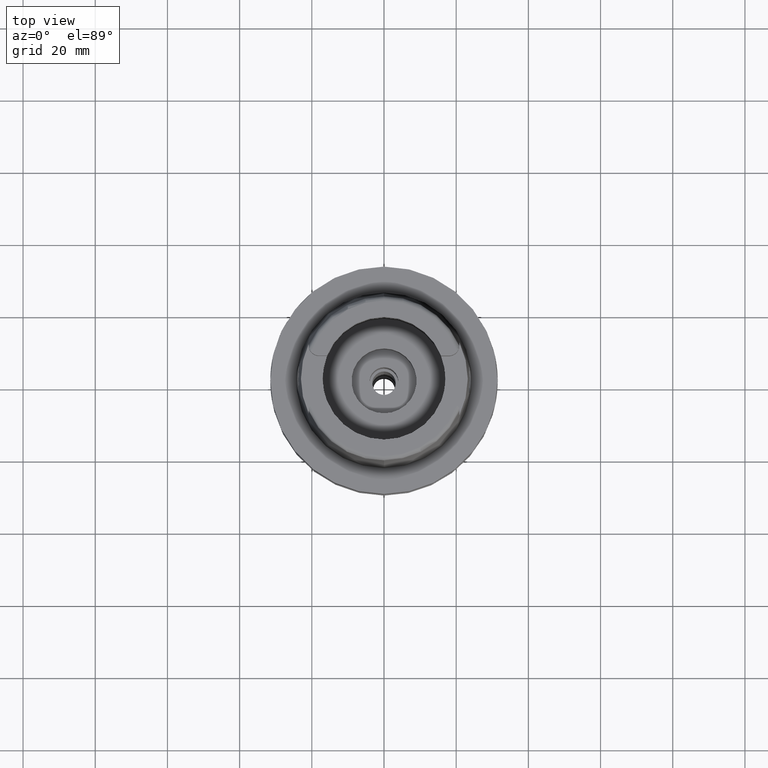
[diagram: clean part render]
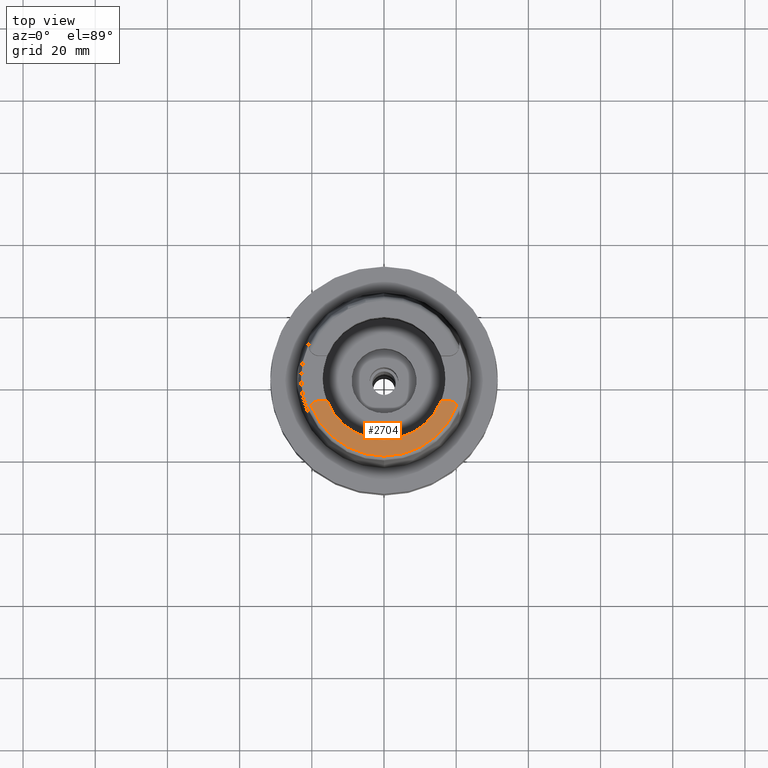
[diagram: same view with one face highlighted and labeled with its STEP entity id]
A machine part, top view. The second image highlights one B-rep face of the part: STEP entity #2704.
In plain terms, the highlighted planar face has unit normal (0, 0, 1).
Its self-contained STEP definition (entity closure, byte-faithful):
#99=DIRECTION('',(-1.E0,8.644330667353E-14,0.E0));
#100=VECTOR('',#99,2.188509563969E0);
#101=CARTESIAN_POINT('',(-1.580149043603E1,-6.27E0,3.2E1));
#102=LINE('',#101,#100);
#106=CARTESIAN_POINT('',(-1.799E1,-9.15E0,3.2E1));
#107=DIRECTION('',(0.E0,0.E0,-1.E0));
#108=DIRECTION('',(-7.912216523764E-1,6.115294733787E-1,0.E0));
#109=AXIS2_PLACEMENT_3D('',#106,#107,#108);
#114=CARTESIAN_POINT('',(0.E0,0.E0,3.2E1));
#115=DIRECTION('',(0.E0,0.E0,1.E0));
#116=DIRECTION('',(-9.294994374136E-1,-3.688235294118E-1,0.E0));
#117=AXIS2_PLACEMENT_3D('',#114,#115,#116);
#122=CARTESIAN_POINT('',(0.E0,0.E0,3.2E1));
#123=DIRECTION('',(0.E0,0.E0,1.E0));
#124=DIRECTION('',(0.E0,-1.E0,0.E0));
#125=AXIS2_PLACEMENT_3D('',#122,#123,#124);
#130=CARTESIAN_POINT('',(1.799E1,-9.15E0,3.2E1));
#131=DIRECTION('',(0.E0,0.E0,-1.E0));
#132=DIRECTION('',(0.E0,1.E0,0.E0));
#133=AXIS2_PLACEMENT_3D('',#130,#131,#132);
#138=CARTESIAN_POINT('',(0.E0,0.E0,3.2E1));
#139=DIRECTION('',(0.E0,0.E0,-1.E0));
#140=DIRECTION('',(9.395199128801E-1,-3.424942821446E-1,0.E0));
#141=AXIS2_PLACEMENT_3D('',#138,#139,#140);
#309=DIRECTION('',(-1.E0,-8.806665515566E-14,0.E0));
#310=VECTOR('',#309,2.188509563969E0);
#311=CARTESIAN_POINT('',(1.799E1,-6.27E0,3.2E1));
#312=LINE('',#311,#310);
#2301=CARTESIAN_POINT('',(0.E0,-1.7E1,3.2E1));
#2302=VERTEX_POINT('',#2301);
#2303=CARTESIAN_POINT('',(-1.580149043603E1,-6.27E0,3.2E1));
#2304=VERTEX_POINT('',#2303);
#2317=CARTESIAN_POINT('',(-1.799E1,-6.27E0,3.2E1));
#2318=VERTEX_POINT('',#2317);
#2329=CARTESIAN_POINT('',(-2.026871835884E1,-7.388795116669E0,3.2E1));
#2330=VERTEX_POINT('',#2329);
#2331=CARTESIAN_POINT('',(1.580149043603E1,-6.27E0,3.2E1));
#2332=VERTEX_POINT('',#2331);
#2333=CARTESIAN_POINT('',(1.799E1,-6.27E0,3.2E1));
#2334=VERTEX_POINT('',#2333);
#2335=CARTESIAN_POINT('',(2.026871835884E1,-7.388795116670E0,3.2E1));
#2336=VERTEX_POINT('',#2335);
#2685=CARTESIAN_POINT('',(0.E0,0.E0,3.2E1));
#2686=DIRECTION('',(0.E0,0.E0,1.E0));
#2687=DIRECTION('',(0.E0,1.E0,0.E0));
#2688=AXIS2_PLACEMENT_3D('',#2685,#2686,#2687);
#2689=PLANE('',#2688);
#2691=ORIENTED_EDGE('',*,*,#2690,.T.);
#2692=ORIENTED_EDGE('',*,*,#2677,.F.);
#2693=ORIENTED_EDGE('',*,*,#2641,.T.);
#2695=ORIENTED_EDGE('',*,*,#2694,.T.);
#2697=ORIENTED_EDGE('',*,*,#2696,.F.);
#2699=ORIENTED_EDGE('',*,*,#2698,.T.);
#2701=ORIENTED_EDGE('',*,*,#2700,.T.);
#2702=EDGE_LOOP('',(#2691,#2692,#2693,#2695,#2697,#2699,#2701));
#2703=FACE_OUTER_BOUND('',#2702,.F.);
#110=CIRCLE('',#109,2.88E0);
#118=CIRCLE('',#117,1.7E1);
#126=CIRCLE('',#125,1.7E1);
#134=CIRCLE('',#133,2.88E0);
#142=CIRCLE('',#141,2.157348458609E1);
#2641=EDGE_CURVE('',#2304,#2302,#118,.T.);
#2677=EDGE_CURVE('',#2304,#2318,#102,.T.);
#2690=EDGE_CURVE('',#2330,#2318,#110,.T.);
#2694=EDGE_CURVE('',#2302,#2332,#126,.T.);
#2696=EDGE_CURVE('',#2334,#2332,#312,.T.);
#2698=EDGE_CURVE('',#2334,#2336,#134,.T.);
#2700=EDGE_CURVE('',#2336,#2330,#142,.T.);
#2704=ADVANCED_FACE('',(#2703),#2689,.T.);